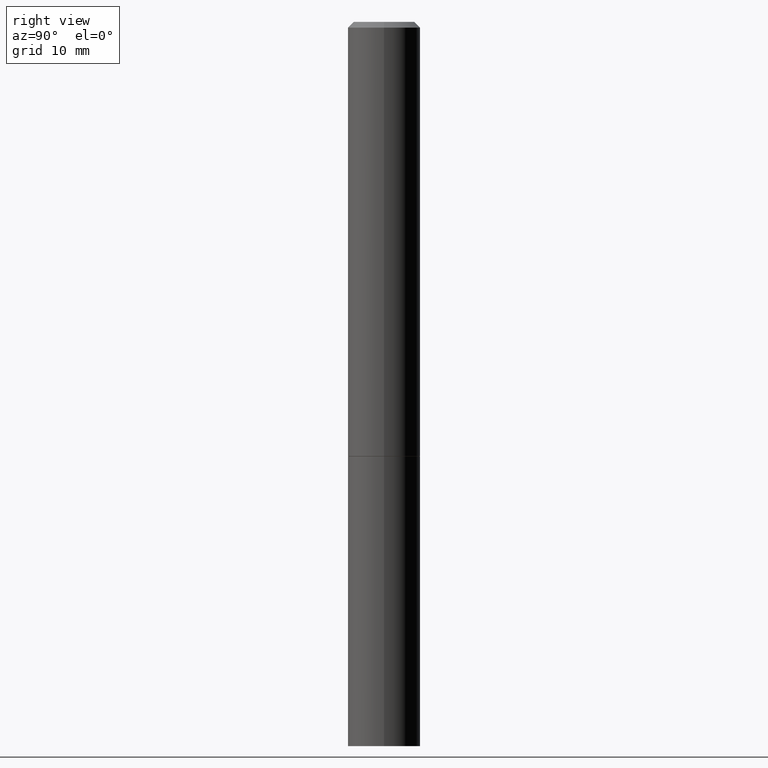
[diagram: clean part render]
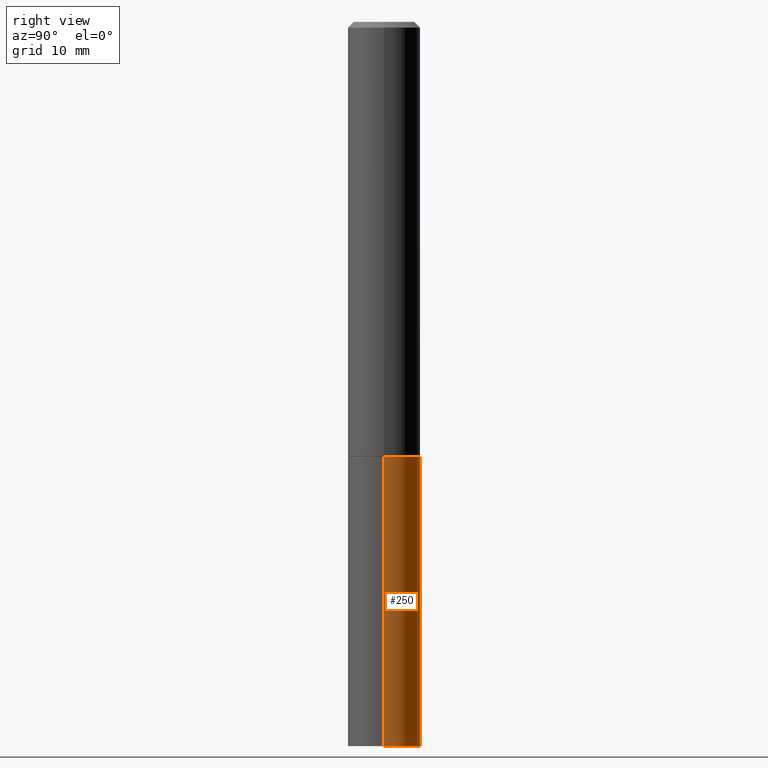
[diagram: same view with one face highlighted and labeled with its STEP entity id]
A machine part, right view. The second image highlights one B-rep face of the part: STEP entity #250.
In plain terms, the highlighted cylindrical surface (edge-blend (fillet) strip) has radius 3.175 mm, axis along (-0, 0, 1).
Its self-contained STEP definition (entity closure, byte-faithful):
#11 = LINE ( 'NONE', #148, #98 ) ;
#25 = AXIS2_PLACEMENT_3D ( 'NONE', #197, #285, #110 ) ;
#28 = DIRECTION ( 'NONE',  ( 1.000000000000000000, -6.982962677686266711E-15, 4.876176775795935793E-29 ) ) ;
#35 = VERTEX_POINT ( 'NONE', #76 ) ;
#37 = VECTOR ( 'NONE', #306, 39.37007874015748143 ) ;
#44 = EDGE_CURVE ( 'NONE', #348, #321, #219, .T. ) ;
#54 = CARTESIAN_POINT ( 'NONE',  ( 0.1250000000000000000, -9.601573681818648281E-15, -2.500000000000000000 ) ) ;
#65 = DIRECTION ( 'NONE',  ( -2.445468806185136877E-29, 3.491481338843145188E-15, 1.000000000000000000 ) ) ;
#76 = CARTESIAN_POINT ( 'NONE',  ( 0.1250000000000000000, -6.110092342975501516E-15, -1.500000000000000222 ) ) ;
#98 = VECTOR ( 'NONE', #65, 39.37007874015748143 ) ;
#106 = ORIENTED_EDGE ( 'NONE', *, *, #138, .F. ) ;
#108 = CARTESIAN_POINT ( 'NONE',  ( 3.668203209277704895E-29, -5.237222008264718177E-15, -1.500000000000000222 ) ) ;
#110 = DIRECTION ( 'NONE',  ( 1.000000000000000000, -6.982962677686270655E-15, 0.000000000000000000 ) ) ;
#114 = FACE_OUTER_BOUND ( 'NONE', #142, .T. ) ;
#117 = DIRECTION ( 'NONE',  ( -2.445468806185136597E-29, 3.491481338843145583E-15, 1.000000000000000000 ) ) ;
#138 = EDGE_CURVE ( 'NONE', #35, #321, #140, .T. ) ;
#140 = CIRCLE ( 'NONE', #279, 0.1250000000000000000 ) ;
#142 = EDGE_LOOP ( 'NONE', ( #300, #217, #106, #226 ) ) ;
#143 = CYLINDRICAL_SURFACE ( 'NONE', #231, 0.1250000000000000000 ) ;
#148 = CARTESIAN_POINT ( 'NONE',  ( 0.1250000000000000000, -8.728703347107833388E-16, 6.095220969744919741E-30 ) ) ;
#149 = EDGE_CURVE ( 'NONE', #181, #348, #185, .T. ) ;
#181 = VERTEX_POINT ( 'NONE', #54 ) ;
#185 = CIRCLE ( 'NONE', #25, 0.1250000000000000000 ) ;
#187 = CARTESIAN_POINT ( 'NONE',  ( -0.1250000000000000000, 8.881784197001252323E-16, -6.148668862818632227E-30 ) ) ;
#197 = CARTESIAN_POINT ( 'NONE',  ( 6.113672015462842613E-29, -8.728703347107864943E-15, -2.500000000000000000 ) ) ;
#217 = ORIENTED_EDGE ( 'NONE', *, *, #44, .T. ) ;
#219 = LINE ( 'NONE', #187, #37 ) ;
#225 = DIRECTION ( 'NONE',  ( 1.000000000000000000, -6.982962677686262766E-15, 0.000000000000000000 ) ) ;
#226 = ORIENTED_EDGE ( 'NONE', *, *, #344, .F. ) ;
#231 = AXIS2_PLACEMENT_3D ( 'NONE', #239, #117, #28 ) ;
#239 = CARTESIAN_POINT ( 'NONE',  ( 0.000000000000000000, 0.000000000000000000, 0.000000000000000000 ) ) ;
#249 = CARTESIAN_POINT ( 'NONE',  ( -0.1250000000000000000, -6.094784257986165933E-15, -1.500000000000000222 ) ) ;
#250 = ADVANCED_FACE ( 'NONE', ( #114 ), #143, .T. ) ;
#273 = CARTESIAN_POINT ( 'NONE',  ( -0.1250000000000000000, -6.094784257986165933E-15, -2.500000000000000000 ) ) ;
#279 = AXIS2_PLACEMENT_3D ( 'NONE', #108, #336, #225 ) ;
#285 = DIRECTION ( 'NONE',  ( -2.445468806185136597E-29, 3.491481338843145583E-15, 1.000000000000000000 ) ) ;
#300 = ORIENTED_EDGE ( 'NONE', *, *, #149, .T. ) ;
#306 = DIRECTION ( 'NONE',  ( -2.445468806185136877E-29, 3.491481338843145188E-15, 1.000000000000000000 ) ) ;
#321 = VERTEX_POINT ( 'NONE', #249 ) ;
#336 = DIRECTION ( 'NONE',  ( -2.445468806185136597E-29, 3.491481338843145583E-15, 1.000000000000000000 ) ) ;
#344 = EDGE_CURVE ( 'NONE', #181, #35, #11, .T. ) ;
#348 = VERTEX_POINT ( 'NONE', #273 ) ;